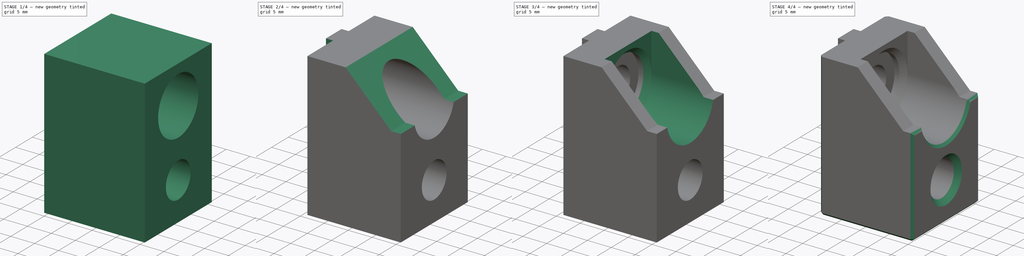
[diagram: build sequence overview — one tinted view per stage of 4, left to right]
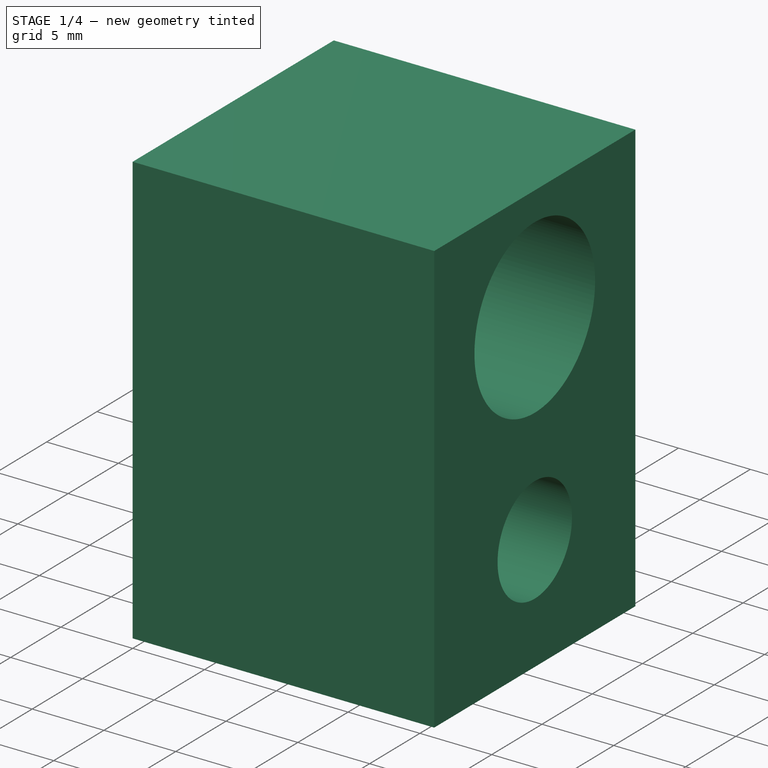
[diagram: stage 1 of 4 — iso view after this stage's code; geometry added in this stage tinted green]
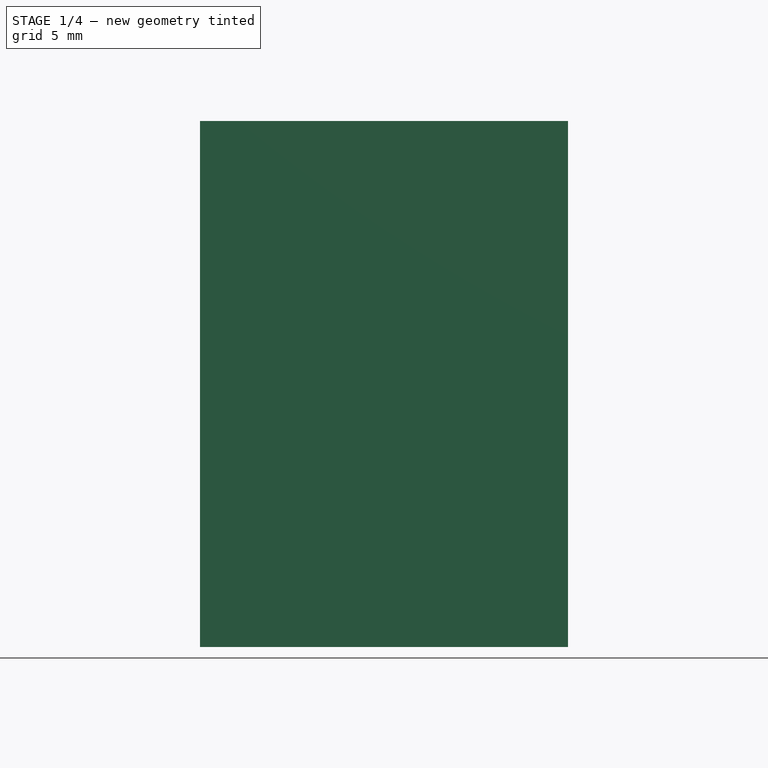
[diagram: stage 1 of 4 — front view after this stage's code; geometry added in this stage tinted green]
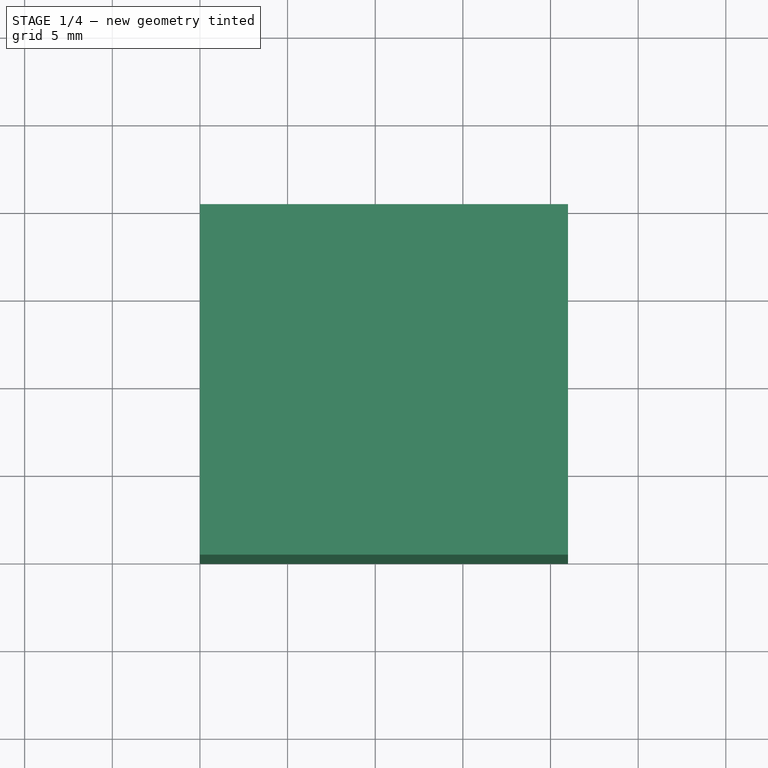
[diagram: stage 1 of 4 — top view after this stage's code; geometry added in this stage tinted green]
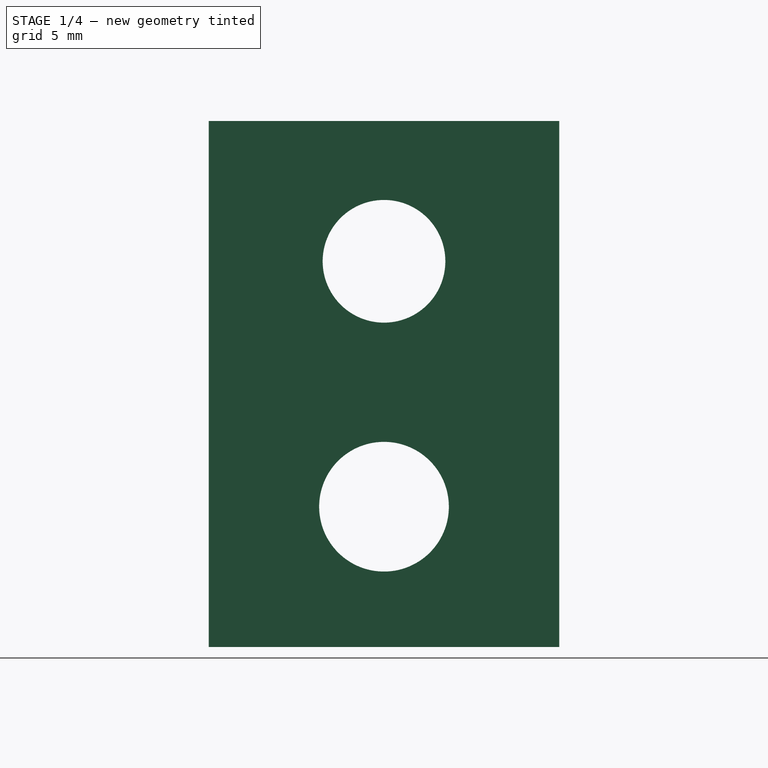
[diagram: stage 1 of 4 — right view after this stage's code; geometry added in this stage tinted green]
FCSTD DOCUMENT  (FreeCAD 0.17R13662 (Git))
Label: bed_mount_chassis_v3.5
License: CreativeCommons Attribution-ShareAlike
LicenseURL: http://creativecommons.org/licenses/by-sa/4.0/
objects: Sketcher::SketchObject×5, PartDesign::Pocket×4, PartDesign::Chamfer×4, PartDesign::Pad×1, PartDesign::Body×1
note: 20 computed .brp shape members not serialized (recipe doc carries the construction recipe); baked Part::Feature solids carry a one-line shape summary decoded from their .brp

FEATURE [Sketcher::SketchObject] Sketch
  MapMode = 5
  Placement = pos=(0,0,0) rot=(0.57735,0.57735,0.57735;2.0944rad)
  Support = -> [YZ_Plane001]
  sketch-geometry (6):
    g0: LineSegment StartX=0 StartY=30 StartZ=0 EndX=20 EndY=30 EndZ=0
    g1: LineSegment StartX=20 StartY=30 StartZ=0 EndX=20 EndY=0 EndZ=0
    g2: LineSegment StartX=20 StartY=0 StartZ=0 EndX=0 EndY=0 EndZ=0
    g3: LineSegment StartX=0 StartY=0 StartZ=0 EndX=0 EndY=30 EndZ=0
    g4: Circle CenterX=10 CenterY=22 CenterZ=0 NormalX=0 NormalY=0 NormalZ=1 AngleXU=0 Radius=3.5
    g5: Circle CenterX=10 CenterY=8 CenterZ=0 NormalX=0 NormalY=0 NormalZ=1 AngleXU=0 Radius=3.7
  constraints (17):
    c: Coincident(g0,g1)
    c: Coincident(g1,g2)
    c: Coincident(g2,g3)
    c: Coincident(g3,g0)
    c: Horizontal(g0)
    c: Horizontal(g2)
    c: Vertical(g1)
    c: Vertical(g3)
    c: DistanceX(g5) = 10
    c: DistanceY(g5) = 8
    c: DistanceX(g5,g4) = 0
    c: DistanceY(g5,g4) = 14
    c: Radius(g4) = 3.5
    c: Radius(g5) = 3.7
    c: Coincident(g2,g-1)
    c: DistanceY(g3,g3) = 30
    c: DistanceX(g0,g0) = 20
FEATURE [PartDesign::Pad] Pad
  Length = 21
  Length2 = 100
  Placement = pos=(0,0,0) rot=(0.57735,0.57735,0.57735;2.0944rad)
  Profile = -> Sketch
  Type = 0
FEATURE [Sketcher::SketchObject] Sketch001
  MapMode = 5
  Placement = pos=(21,0,0) rot=(0.57735,0.57735,0.57735;2.0944rad)
  Support = -> [Pad]
  sketch-geometry (1):
    g0: Circle CenterX=10 CenterY=22 CenterZ=0 NormalX=0 NormalY=0 NormalZ=1 AngleXU=0 Radius=6
  constraints (3):
    c: DistanceX(g0) = 10
    c: DistanceY(g0) = 22
    c: Radius(g0) = 6
FEATURE [PartDesign::Pocket] Pocket
  BaseFeature = -> Pad
  Length = 15
  Length2 = 100
  Placement = pos=(0,0,0) rot=(0.57735,0.57735,0.57735;2.0944rad)
  Profile = -> Sketch001
  Type = 0
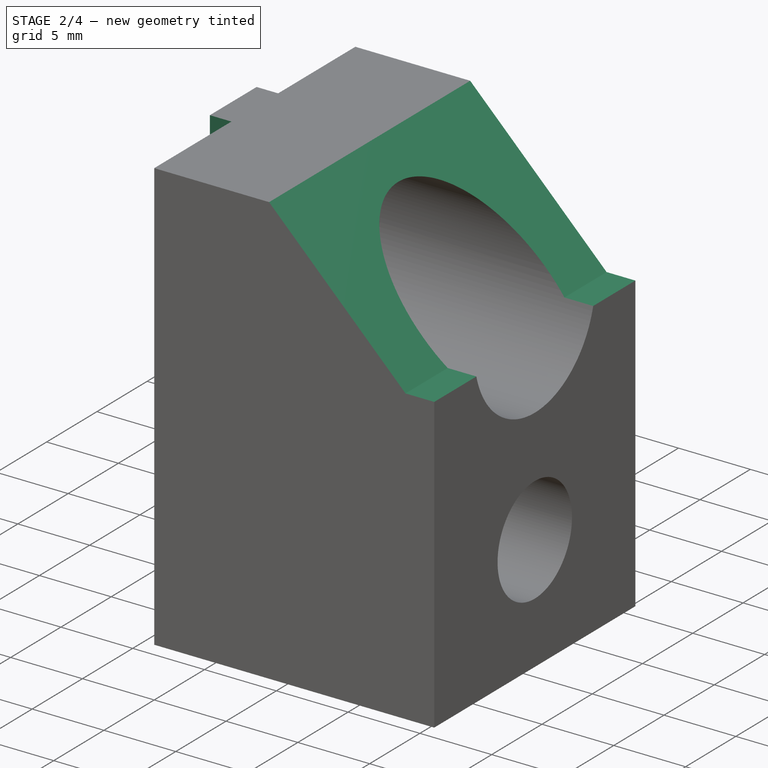
[diagram: stage 2 of 4 — iso view after this stage's code; geometry added in this stage tinted green]
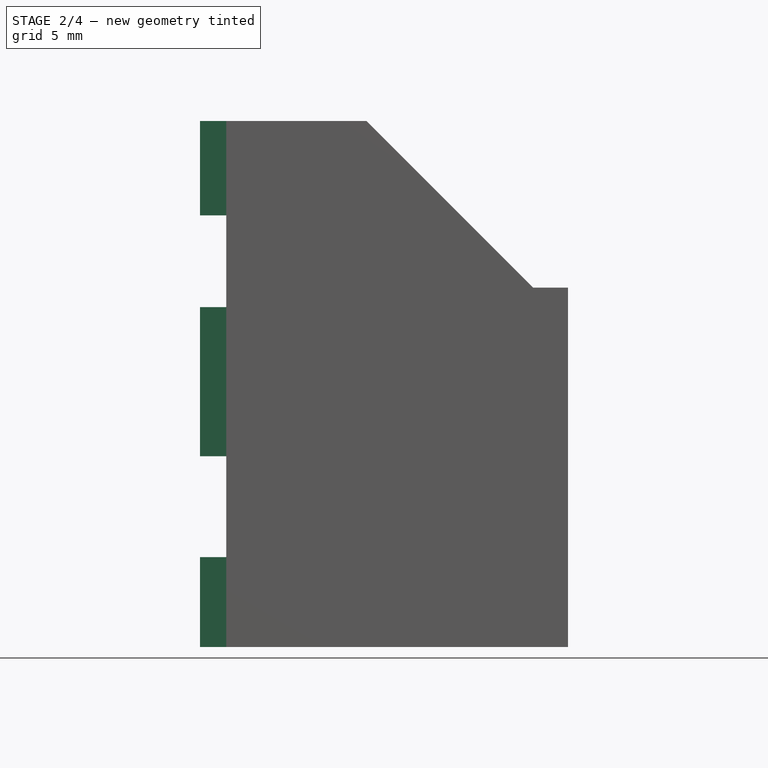
[diagram: stage 2 of 4 — front view after this stage's code; geometry added in this stage tinted green]
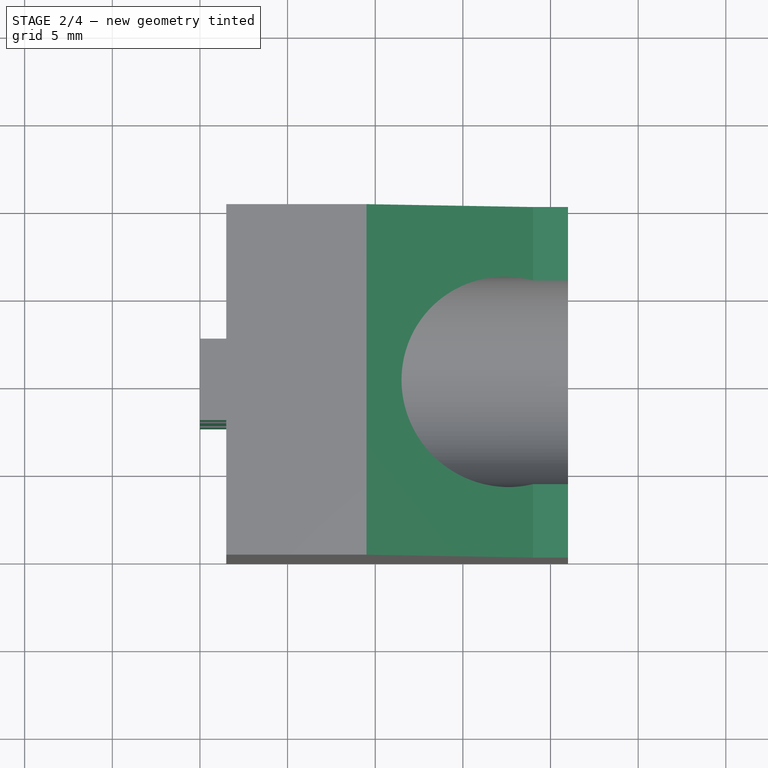
[diagram: stage 2 of 4 — top view after this stage's code; geometry added in this stage tinted green]
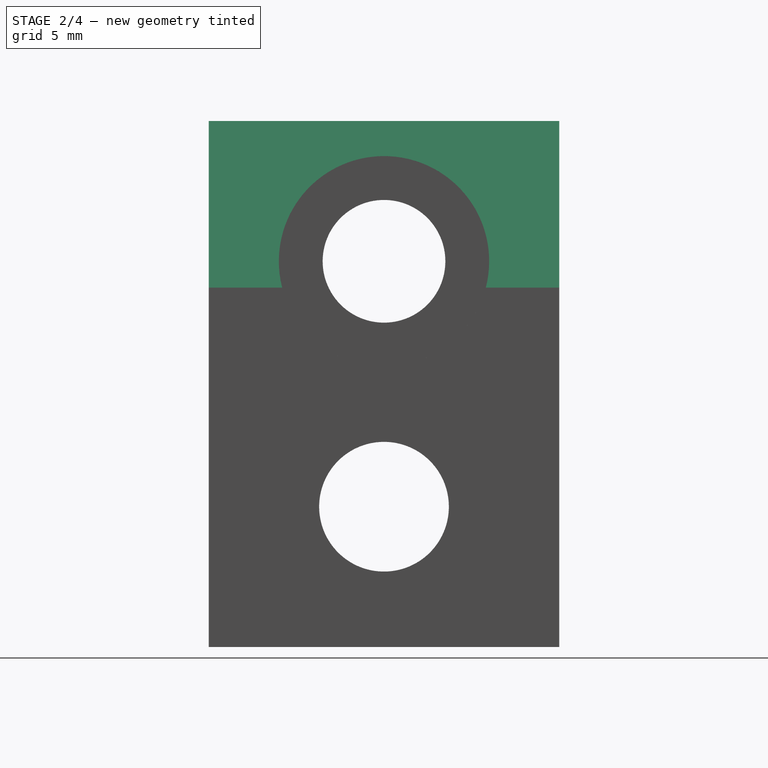
[diagram: stage 2 of 4 — right view after this stage's code; geometry added in this stage tinted green]
FEATURE [Sketcher::SketchObject] Sketch002
  MapMode = 5
  Placement = pos=(0,0,0) rot=(-0.57735,-0.57735,0.57735;2.0944rad)
  Support = -> [Pocket]
  sketch-geometry (8):
    g0: LineSegment StartX=0 StartY=0 StartZ=0 EndX=7.675 EndY=0 EndZ=0
    g1: LineSegment StartX=20 StartY=0 StartZ=0 EndX=20 EndY=-30 EndZ=0
    g2: LineSegment StartX=20 StartY=-30 StartZ=0 EndX=12.325 EndY=-30 EndZ=0
    g3: LineSegment StartX=0 StartY=-30 StartZ=0 EndX=0 EndY=0 EndZ=0
    g4: LineSegment StartX=7.675 StartY=0 StartZ=0 EndX=7.675 EndY=-30 EndZ=0
    g5: LineSegment StartX=12.325 StartY=-30 StartZ=0 EndX=12.325 EndY=0 EndZ=0
    g6: LineSegment StartX=7.675 StartY=-30 StartZ=0 EndX=0 EndY=-30 EndZ=0
    g7: LineSegment StartX=12.325 StartY=0 StartZ=0 EndX=20 EndY=0 EndZ=0
  constraints (21):
    c: Coincident(g7,g1)
    c: Coincident(g1,g2)
    c: Coincident(g6,g3)
    c: Coincident(g3,g0)
    c: Horizontal(g0)
    c: Horizontal(g2)
    c: Vertical(g1)
    c: Vertical(g3)
    c: Coincident(g0,g-1)
    c: DistanceX(g0,g7) = 20
    c: DistanceY(g1,g1) = 30
    c: Vertical(g4)
    c: Vertical(g5)
    c: Coincident(g2,g5)
    c: Coincident(g6,g4)
    c: Tangent(g2,g6)
    c: Coincident(g0,g4)
    c: Coincident(g7,g5)
    c: Tangent(g0,g7)
    c: Equal(g7,g0)
    c: DistanceX(g7,g7) = 7.675
FEATURE [PartDesign::Pocket] Pocket001
  BaseFeature = -> Pocket
  Length = 1.5
  Length2 = 100
  Placement = pos=(0,0,0) rot=(0.57735,0.57735,0.57735;2.0944rad)
  Profile = -> Sketch002
  Type = 0
FEATURE [Sketcher::SketchObject] Sketch003
  MapMode = 5
  Placement = pos=(0,0,0) rot=(0.57735,0.57735,-0.57735;2.0944rad)
  Support = -> [Pocket001]
  sketch-geometry (4):
    g0: LineSegment StartX=-30 StartY=9.5 StartZ=0 EndX=-20.5 EndY=19 EndZ=0
    g1: LineSegment StartX=-20.5 StartY=19 StartZ=0 EndX=-20.5 EndY=21 EndZ=0
    g2: LineSegment StartX=-20.5 StartY=21 StartZ=0 EndX=-30 EndY=21 EndZ=0
    g3: LineSegment StartX=-30 StartY=21 StartZ=0 EndX=-30 EndY=9.5 EndZ=0
  constraints (12):
    c: Coincident(g0,g1)
    c: Coincident(g1,g2)
    c: Coincident(g2,g3)
    c: Coincident(g0,g3)
    c: DistanceX(g0) = -30
    c: DistanceY(g0) = 9.5
    c: Vertical(g3)
    c: Horizontal(g2)
    c: Vertical(g1)
    c: DistanceY(g3,g3) = 11.5
    c: DistanceX(g2,g2) = 9.5
    c: DistanceY(g1,g1) = 2
FEATURE [PartDesign::Pocket] Pocket002
  BaseFeature = -> Pocket001
  Length = 5
  Length2 = 100
  Placement = pos=(0,0,0) rot=(0.57735,0.57735,0.57735;2.0944rad)
  Profile = -> Sketch003
  Type = 1
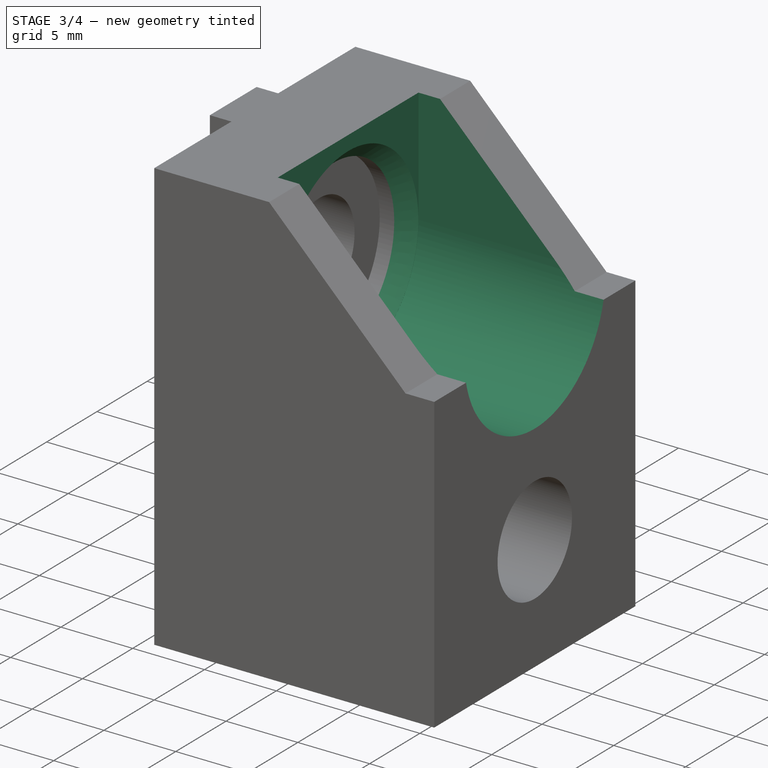
[diagram: stage 3 of 4 — iso view after this stage's code; geometry added in this stage tinted green]
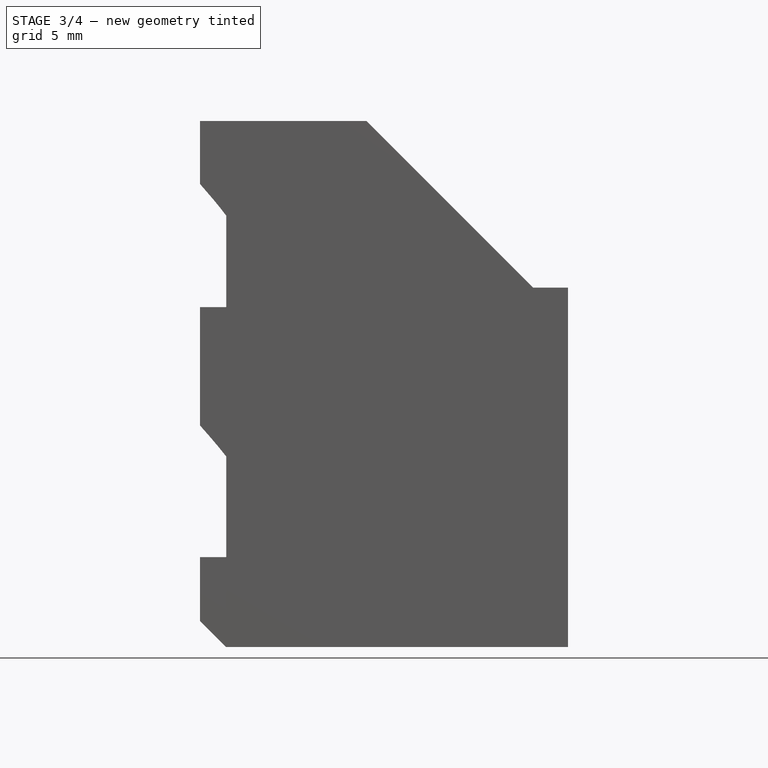
[diagram: stage 3 of 4 — front view after this stage's code; geometry added in this stage tinted green]
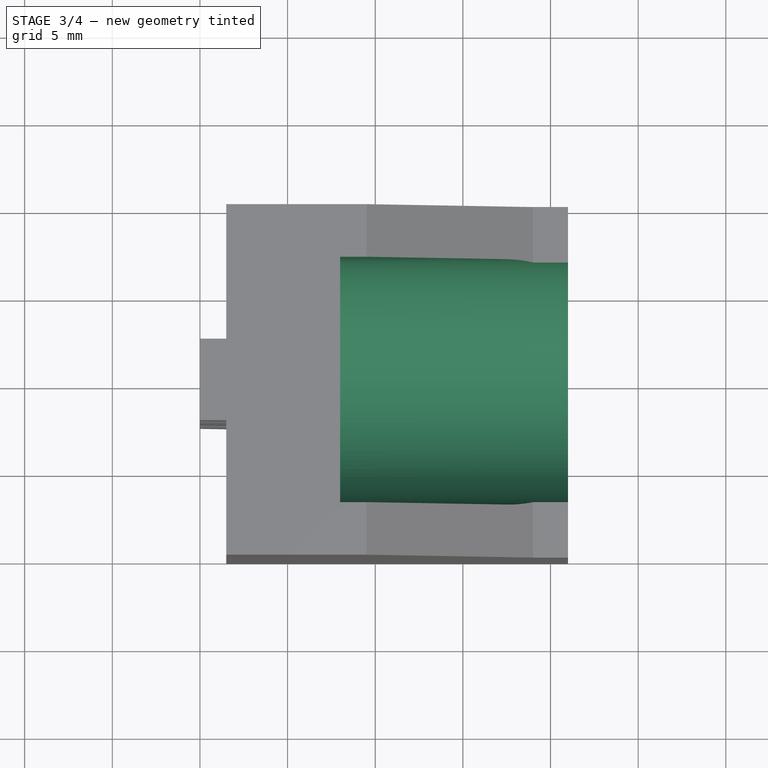
[diagram: stage 3 of 4 — top view after this stage's code; geometry added in this stage tinted green]
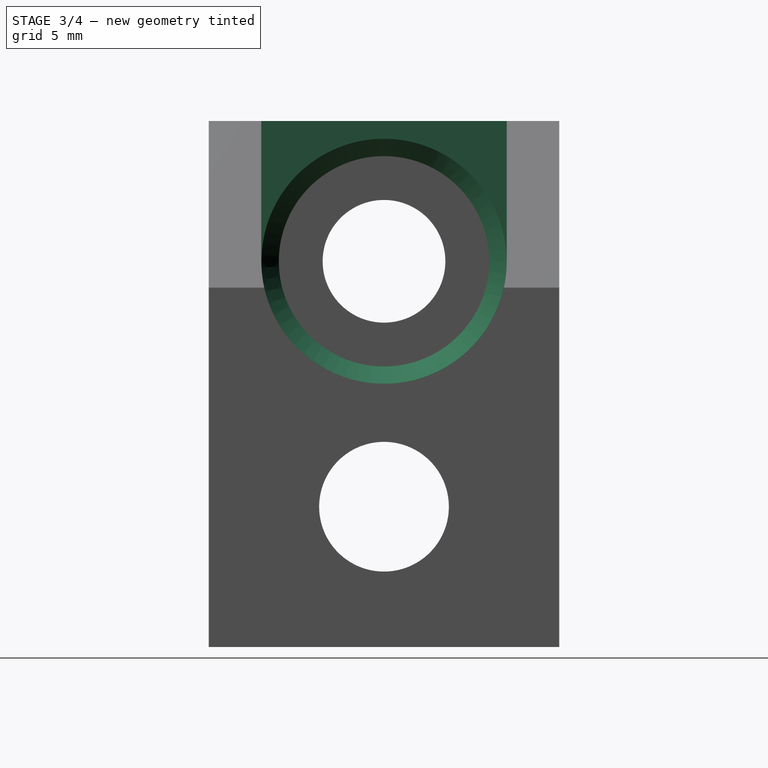
[diagram: stage 3 of 4 — right view after this stage's code; geometry added in this stage tinted green]
FEATURE [Sketcher::SketchObject] Sketch004
  MapMode = 5
  Placement = pos=(21,0,0) rot=(0.57735,0.57735,0.57735;2.0944rad)
  Support = -> [Pocket002]
  sketch-geometry (5):
    g0: ArcOfCircle CenterX=10 CenterY=22 CenterZ=0 NormalX=0 NormalY=0 NormalZ=1 AngleXU=0 Radius=7 StartAngle=3.14159 EndAngle=6.28319
    g1: LineSegment StartX=3 StartY=30 StartZ=0 EndX=17 EndY=30 EndZ=0
    g2: LineSegment StartX=17 StartY=30 StartZ=0 EndX=17 EndY=22 EndZ=0
    g3: LineSegment [constr] StartX=17 StartY=22 StartZ=0 EndX=3 EndY=22 EndZ=0
    g4: LineSegment StartX=3 StartY=22 StartZ=0 EndX=3 EndY=30 EndZ=0
  constraints (15):
    c: DistanceX(g0) = 10
    c: DistanceY(g0) = 22
    c: Coincident(g1,g2)
    c: Coincident(g2,g3)
    c: Coincident(g3,g4)
    c: Coincident(g4,g1)
    c: Horizontal(g1)
    c: Horizontal(g3)
    c: Vertical(g2)
    c: Vertical(g4)
    c: Coincident(g0,g2)
    c: Coincident(g0,g3)
    c: Tangent(g0,g4)
    c: DistanceY(g4,g4) = 8
    c: Radius(g0) = 7
FEATURE [PartDesign::Pocket] Pocket003
  BaseFeature = -> Pocket002
  Length = 13
  Length2 = 100
  Placement = pos=(0,0,0) rot=(0.57735,0.57735,0.57735;2.0944rad)
  Profile = -> Sketch004
  Type = 0
FEATURE [PartDesign::Chamfer] Chamfer
  Base = -> Pocket003 [Edge66,Edge60,Edge14]
  BaseFeature = -> Pocket003
  Placement = pos=(0,0,0) rot=(0.57735,0.57735,0.57735;2.0944rad)
  Size = 1.49
FEATURE [PartDesign::Chamfer] Chamfer001
  Base = -> Chamfer [Edge53]
  BaseFeature = -> Chamfer
  Placement = pos=(0,0,0) rot=(0.57735,0.57735,0.57735;2.0944rad)
  Size = 0.99
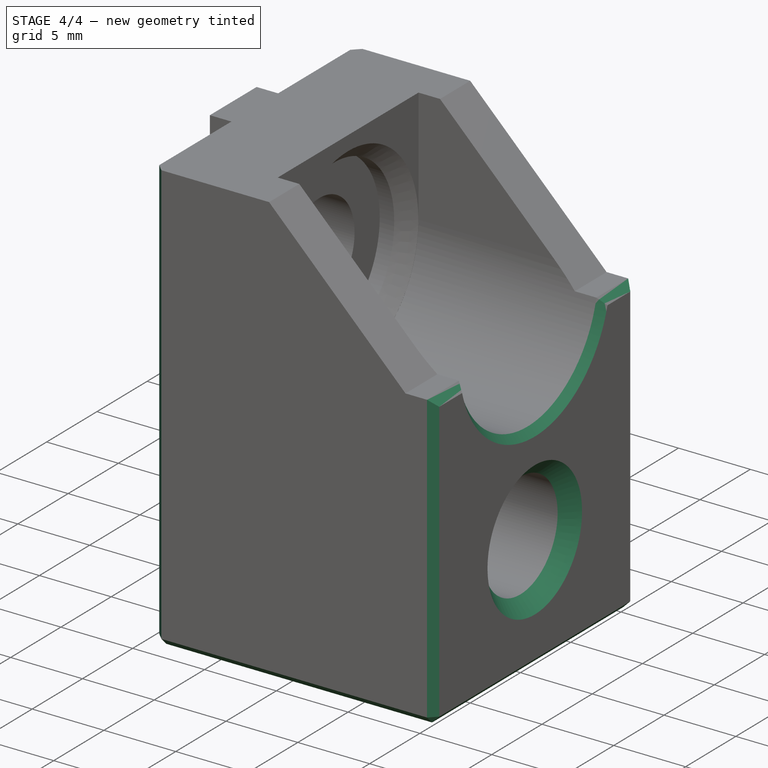
[diagram: stage 4 of 4 — iso view after this stage's code; geometry added in this stage tinted green]
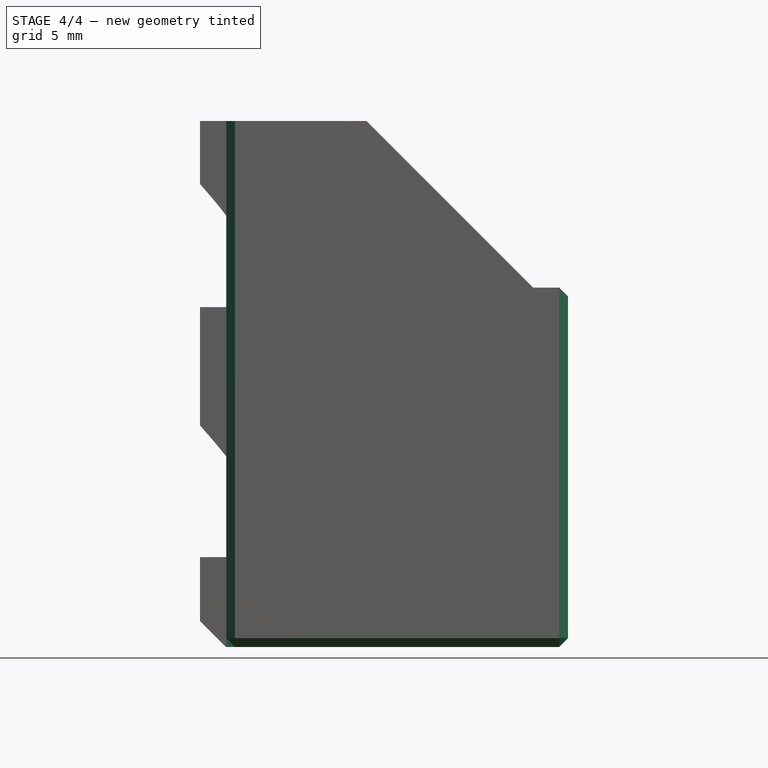
[diagram: stage 4 of 4 — front view after this stage's code; geometry added in this stage tinted green]
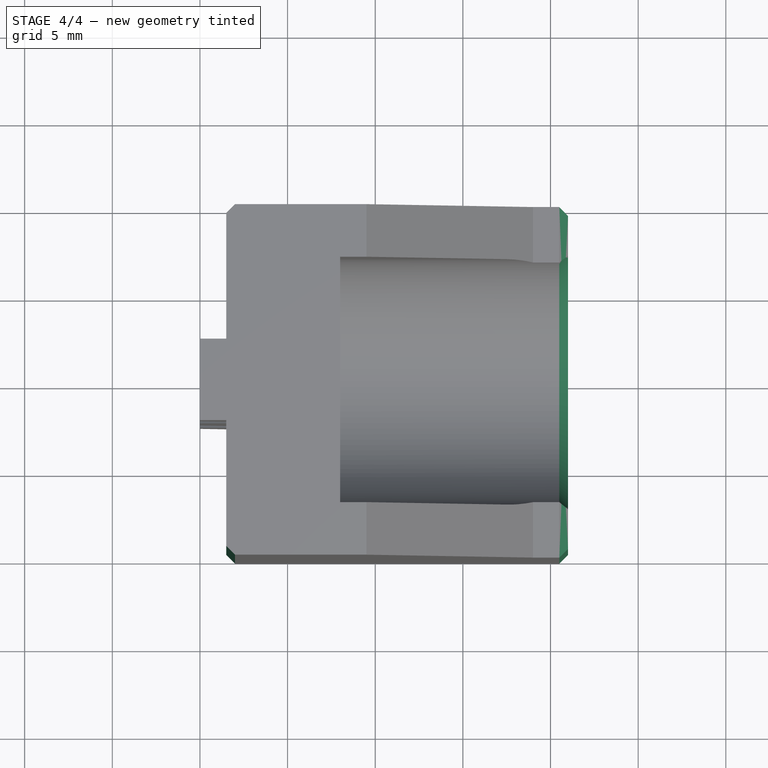
[diagram: stage 4 of 4 — top view after this stage's code; geometry added in this stage tinted green]
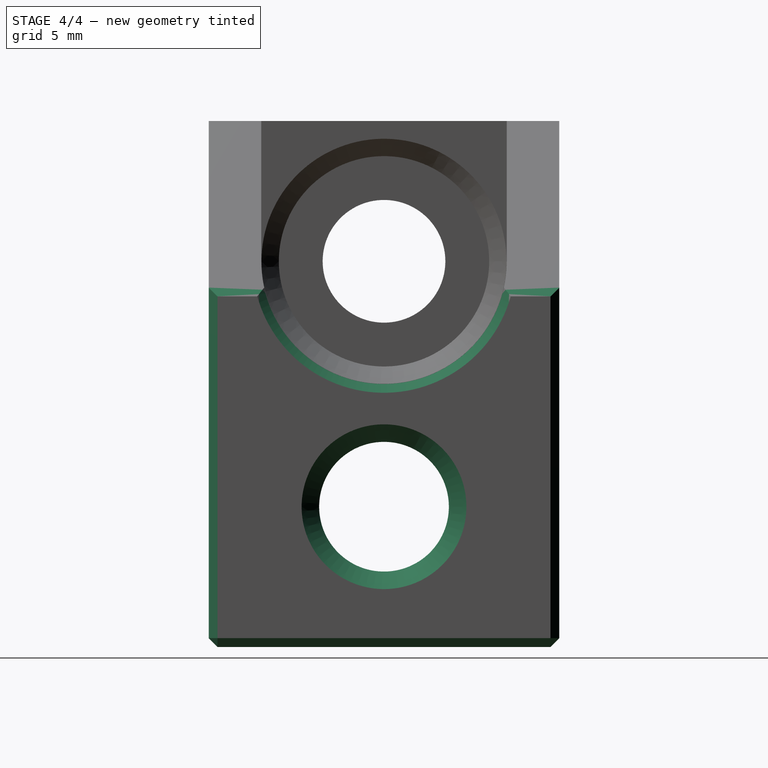
[diagram: stage 4 of 4 — right view after this stage's code; geometry added in this stage tinted green]
FEATURE [PartDesign::Chamfer] Chamfer002
  Base = -> Chamfer001 [Edge55,Edge56,Edge35,Edge36,Edge10,Edge33,Edge37,Edge58,Edge57,Edge34,Edge48,Edge64]
  BaseFeature = -> Chamfer001
  Placement = pos=(0,0,0) rot=(0.57735,0.57735,0.57735;2.0944rad)
  Size = 0.5
FEATURE [PartDesign::Chamfer] Chamfer003
  Base = -> Chamfer002 [Edge40]
  BaseFeature = -> Chamfer002
  Placement = pos=(0,0,0) rot=(0.57735,0.57735,0.57735;2.0944rad)
  Size = 1
FEATURE [PartDesign::Body] Body001
  Group = -> [Sketch,Pad,Sketch001,Pocket,Sketch002,Pocket001,Sketch003,Pocket002,Sketch004,Pocket003,Chamfer,Chamfer001,Chamfer002,Chamfer003]
  Origin = -> Origin001
  Tip = -> Chamfer003
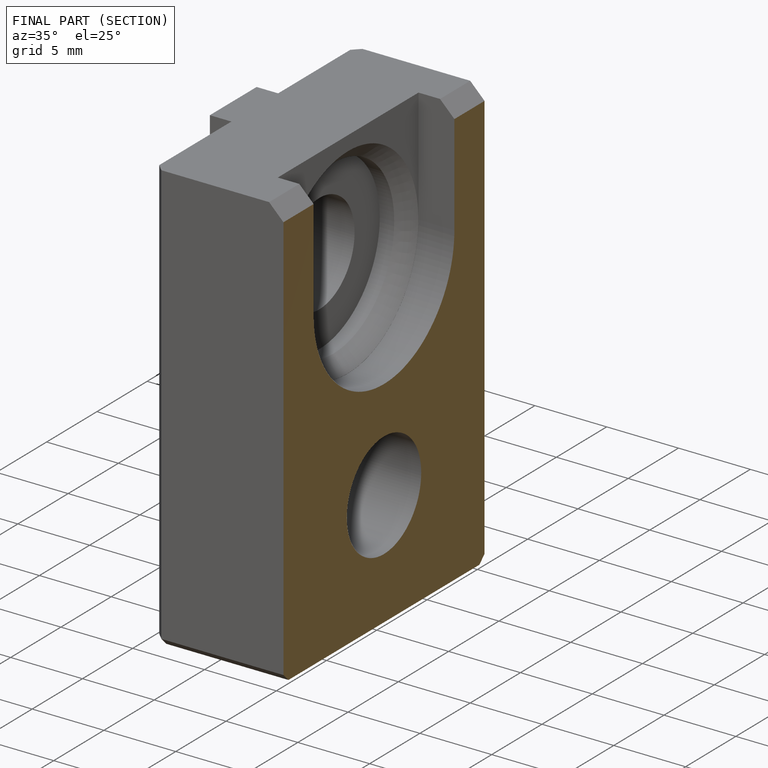
[diagram: finished part — half-section view (interior)]
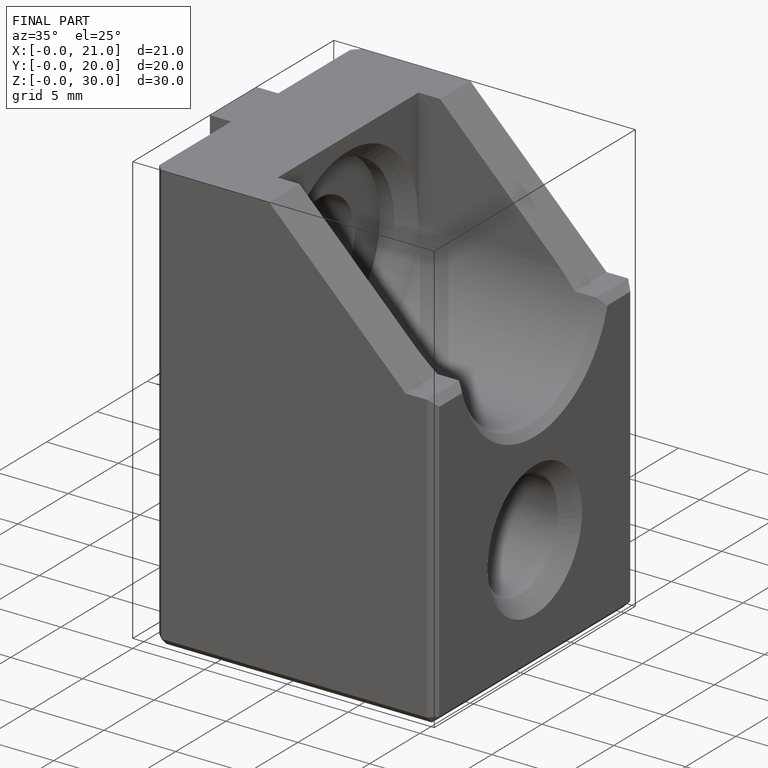
[diagram: finished part — iso view with bounding-box wireframe]
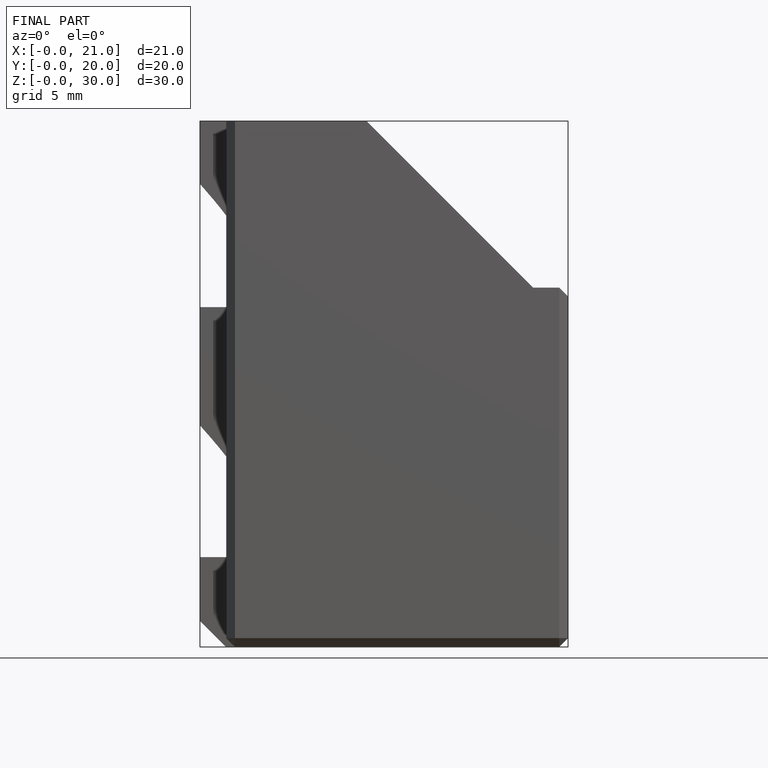
[diagram: finished part — front view with bounding-box wireframe]
